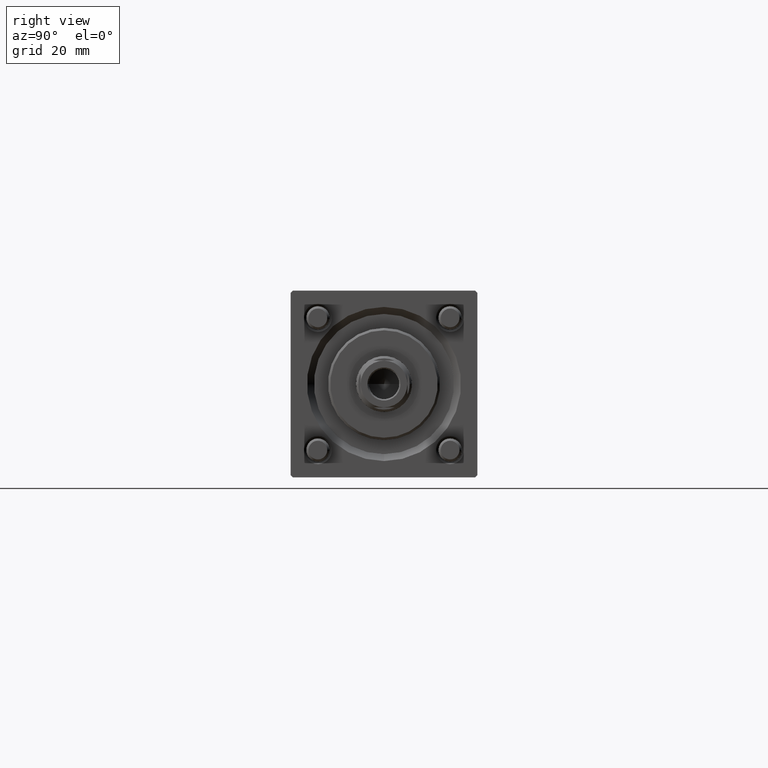
[diagram: clean part render]
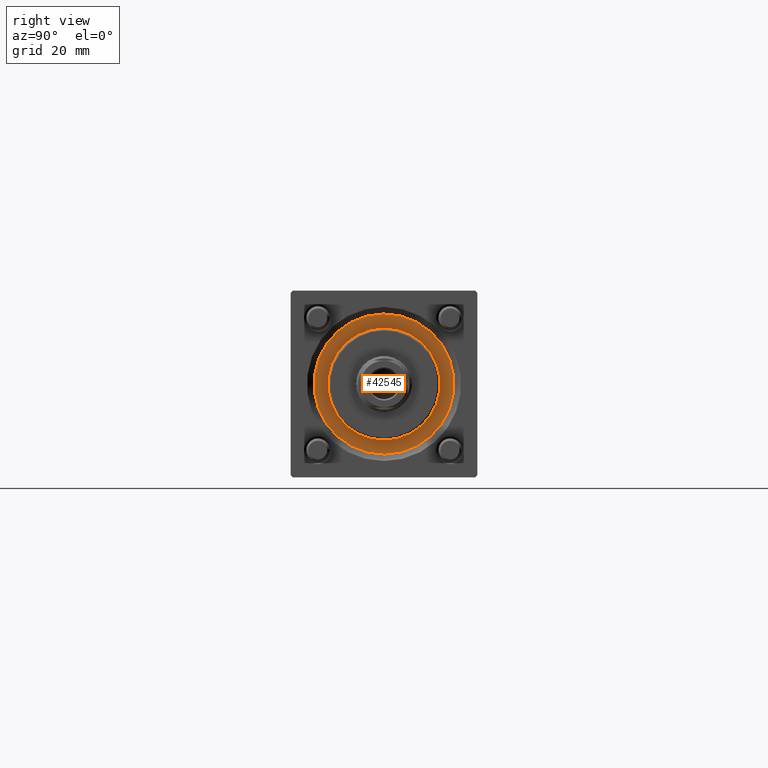
[diagram: same view with one face highlighted and labeled with its STEP entity id]
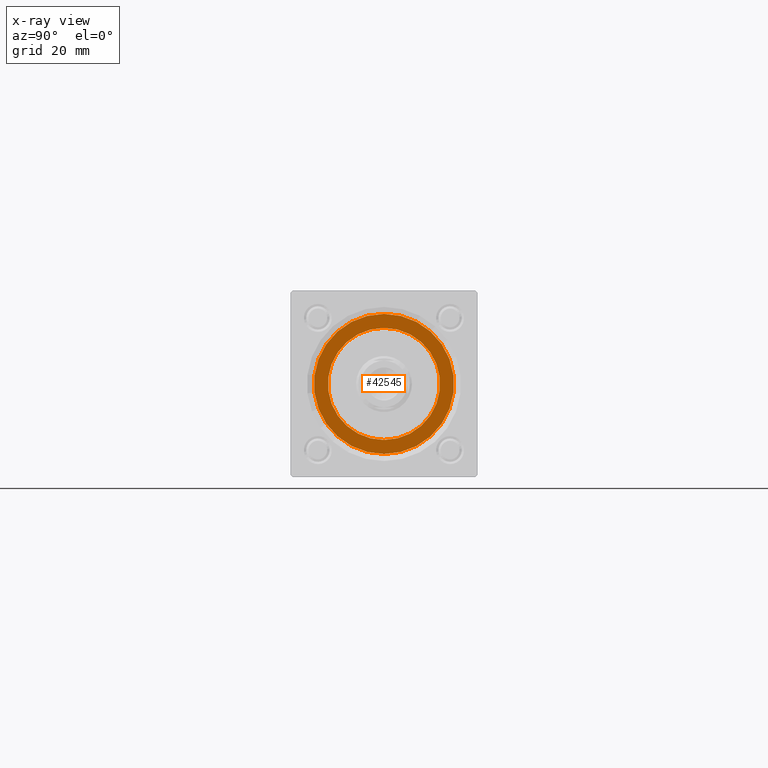
[diagram: x-ray of the same camera — body ghosted, the highlighted face saturated]
A machine part, right view. The second image highlights one B-rep face of the part: STEP entity #42545.
The next image is the same camera in x-ray: the body ghosted, the highlighted face saturated — about 0% of this face is hidden behind the body in this view.
In plain terms, the highlighted planar face has unit normal (1, 0, 0).
Its self-contained STEP definition (entity closure, byte-faithful):
#2880 = FACE_BOUND ( 'NONE', #5990, .T. ) ;
#4304 = DIRECTION ( 'NONE',  ( 0.000000000000000000, 0.000000000000000000, 1.000000000000000000 ) ) ;
#4946 = AXIS2_PLACEMENT_3D ( 'NONE', #48916, #50036, #19074 ) ;
#5493 = AXIS2_PLACEMENT_3D ( 'NONE', #42098, #33476, #20304 ) ;
#5990 = EDGE_LOOP ( 'NONE', ( #19174, #51416 ) ) ;
#7533 = EDGE_CURVE ( 'NONE', #45547, #41666, #31031, .T. ) ;
#7879 = CARTESIAN_POINT ( 'NONE',  ( 12.00000000000000178, 1.469576158976824144E-15, 28.69999999999999929 ) ) ;
#8256 = ORIENTED_EDGE ( 'NONE', *, *, #7533, .T. ) ;
#9464 = EDGE_CURVE ( 'NONE', #41666, #45547, #31109, .T. ) ;
#12854 = DIRECTION ( 'NONE',  ( 1.000000000000000000, 0.000000000000000000, 0.000000000000000000 ) ) ;
#15212 = VERTEX_POINT ( 'NONE', #7879 ) ;
#15637 = EDGE_CURVE ( 'NONE', #36676, #15212, #19198, .T. ) ;
#16065 = DIRECTION ( 'NONE',  ( 0.000000000000000000, 0.000000000000000000, 1.000000000000000000 ) ) ;
#16344 = PLANE ( 'NONE',  #18087 ) ;
#18087 = AXIS2_PLACEMENT_3D ( 'NONE', #51345, #16065, #29249 ) ;
#18671 = CIRCLE ( 'NONE', #4946, 12.00000000000000178 ) ;
#19074 = DIRECTION ( 'NONE',  ( 1.000000000000000000, 0.000000000000000000, 0.000000000000000000 ) ) ;
#19174 = ORIENTED_EDGE ( 'NONE', *, *, #15637, .F. ) ;
#19198 = CIRCLE ( 'NONE', #5493, 12.00000000000000178 ) ;
#20304 = DIRECTION ( 'NONE',  ( 1.000000000000000000, 0.000000000000000000, 0.000000000000000000 ) ) ;
#27396 = AXIS2_PLACEMENT_3D ( 'NONE', #38995, #4304, #48466 ) ;
#29249 = DIRECTION ( 'NONE',  ( 1.000000000000000000, 0.000000000000000000, -0.000000000000000000 ) ) ;
#30769 = CARTESIAN_POINT ( 'NONE',  ( -12.00000000000000178, 0.000000000000000000, 28.69999999999999929 ) ) ;
#31031 = CIRCLE ( 'NONE', #27396, 15.00000000000000000 ) ;
#31109 = CIRCLE ( 'NONE', #44849, 15.00000000000000000 ) ;
#33476 = DIRECTION ( 'NONE',  ( 0.000000000000000000, 0.000000000000000000, 1.000000000000000000 ) ) ;
#33527 = CARTESIAN_POINT ( 'NONE',  ( 15.00000000000000000, 1.836970198721029589E-15, 28.69999999999999929 ) ) ;
#36676 = VERTEX_POINT ( 'NONE', #30769 ) ;
#38940 = CARTESIAN_POINT ( 'NONE',  ( 0.000000000000000000, 0.000000000000000000, 28.69999999999999929 ) ) ;
#38995 = CARTESIAN_POINT ( 'NONE',  ( 0.000000000000000000, 0.000000000000000000, 28.69999999999999929 ) ) ;
#41666 = VERTEX_POINT ( 'NONE', #33527 ) ;
#42098 = CARTESIAN_POINT ( 'NONE',  ( 0.000000000000000000, 0.000000000000000000, 28.69999999999999929 ) ) ;
#42545 = ADVANCED_FACE ( 'NONE', ( #2880, #42738 ), #16344, .T. ) ;
#42738 = FACE_OUTER_BOUND ( 'NONE', #54756, .T. ) ;
#44662 = CARTESIAN_POINT ( 'NONE',  ( -15.00000000000000000, 0.000000000000000000, 28.69999999999999929 ) ) ;
#44849 = AXIS2_PLACEMENT_3D ( 'NONE', #38940, #56460, #12854 ) ;
#45547 = VERTEX_POINT ( 'NONE', #44662 ) ;
#48013 = EDGE_CURVE ( 'NONE', #15212, #36676, #18671, .T. ) ;
#48466 = DIRECTION ( 'NONE',  ( 1.000000000000000000, 0.000000000000000000, 0.000000000000000000 ) ) ;
#48916 = CARTESIAN_POINT ( 'NONE',  ( 0.000000000000000000, 0.000000000000000000, 28.69999999999999929 ) ) ;
#50036 = DIRECTION ( 'NONE',  ( 0.000000000000000000, 0.000000000000000000, 1.000000000000000000 ) ) ;
#51345 = CARTESIAN_POINT ( 'NONE',  ( 0.000000000000000000, 0.000000000000000000, 28.69999999999999929 ) ) ;
#51416 = ORIENTED_EDGE ( 'NONE', *, *, #48013, .F. ) ;
#52637 = ORIENTED_EDGE ( 'NONE', *, *, #9464, .T. ) ;
#54756 = EDGE_LOOP ( 'NONE', ( #8256, #52637 ) ) ;
#56460 = DIRECTION ( 'NONE',  ( 0.000000000000000000, 0.000000000000000000, 1.000000000000000000 ) ) ;